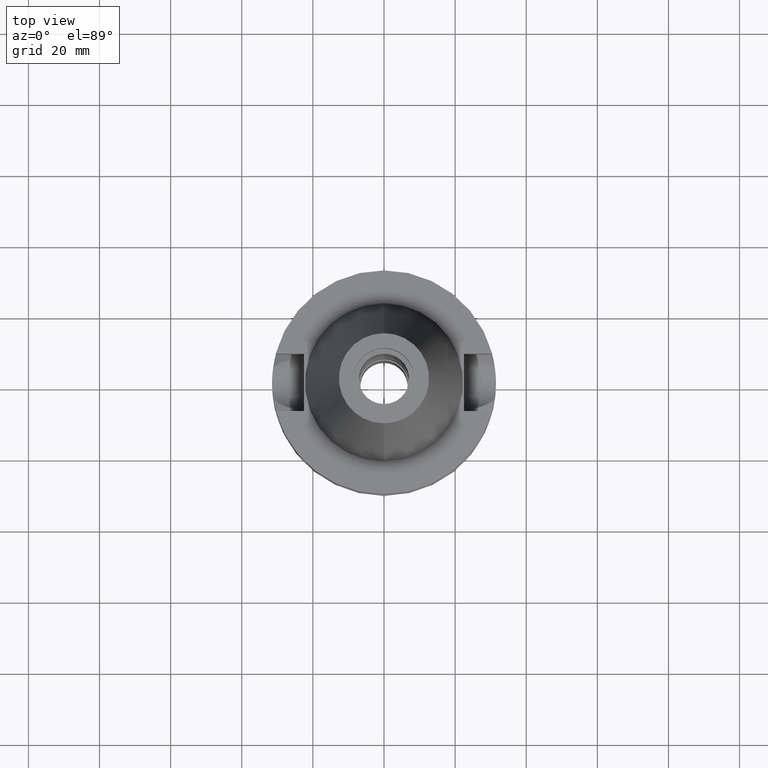
[diagram: clean part render]
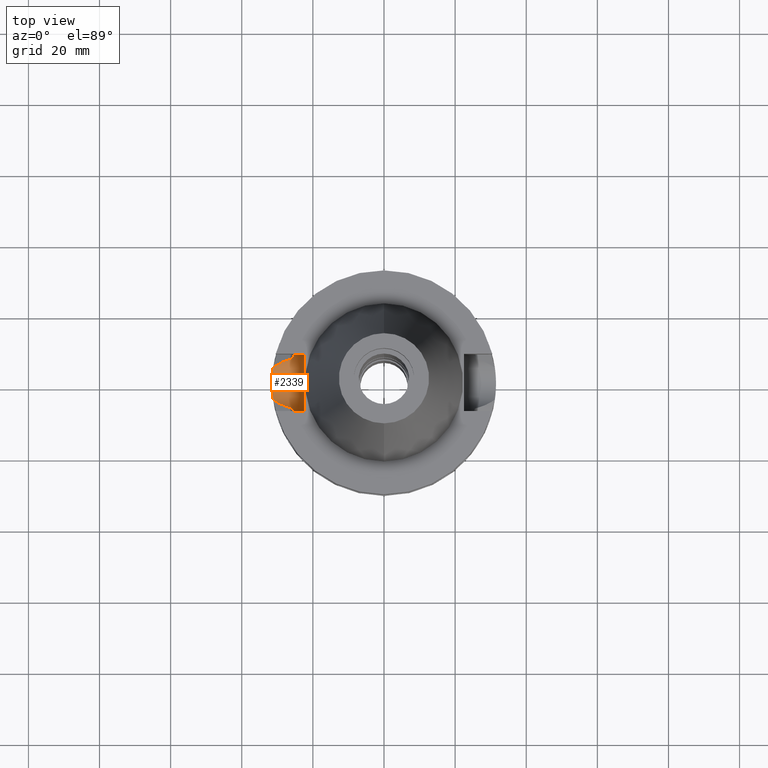
[diagram: same view with one face highlighted and labeled with its STEP entity id]
A machine part, top view. The second image highlights one B-rep face of the part: STEP entity #2339.
In plain terms, the highlighted cylindrical surface (edge-blend (fillet) strip) has radius 8.05 mm, axis along (-1, 0, 0).
Its self-contained STEP definition (entity closure, byte-faithful):
#88 = EDGE_CURVE ( 'NONE', #692, #2580, #1358, .T. ) ;
#94 = DIRECTION ( 'NONE',  ( -1.000000000000000000, 1.616208268639000174E-14, -1.034373291929000154E-14 ) ) ;
#101 = CARTESIAN_POINT ( 'NONE',  ( -27.55974685458694751, -6.434792144163425043, -19.78694888970511556 ) ) ;
#130 = CARTESIAN_POINT ( 'NONE',  ( -25.24772266957999634, -8.049999999999981171, -15.58980474792504367 ) ) ;
#170 = CARTESIAN_POINT ( 'NONE',  ( -25.31202500689251522, 7.845732311882787968, -16.75278555880698406 ) ) ;
#193 = VERTEX_POINT ( 'NONE', #2293 ) ;
#200 = CARTESIAN_POINT ( 'NONE',  ( -31.47056816806593460, -1.371798205043915253, -22.88470967409910273 ) ) ;
#212 = CARTESIAN_POINT ( 'NONE',  ( -28.35446103799016626, 6.108175788018489705, -20.19399472753387315 ) ) ;
#285 = CARTESIAN_POINT ( 'NONE',  ( -27.53353192113093684, -6.444830197928379079, -19.77355624461059946 ) ) ;
#317 = CARTESIAN_POINT ( 'NONE',  ( -27.64694085188696349, -6.401257936267352733, -19.83149640787958390 ) ) ;
#347 = CARTESIAN_POINT ( 'NONE',  ( -22.50000000000000000, -8.050000000000000711, -14.94999999999999929 ) ) ;
#352 = CARTESIAN_POINT ( 'NONE',  ( -26.58005036498687446, -6.789027938969186771, -19.28588337926796470 ) ) ;
#361 = CARTESIAN_POINT ( 'NONE',  ( -31.37907245650120558, 2.757363126057212455, -22.51361630134458025 ) ) ;
#364 = CARTESIAN_POINT ( 'NONE',  ( -25.35408242307545734, -7.708967323044883635, -17.26962711286457974 ) ) ;
#424 = CARTESIAN_POINT ( 'NONE',  ( -31.28458591552441703, -3.751599172498834900, -22.12699252593757393 ) ) ;
#435 = VERTEX_POINT ( 'NONE', #2950 ) ;
#442 = CARTESIAN_POINT ( 'NONE',  ( -31.40255557128091723, 2.476306052350162989, -22.60989025223804205 ) ) ;
#454 = CARTESIAN_POINT ( 'NONE',  ( -31.49983371806497345, -0.3969849275448745773, -22.99934650678997627 ) ) ;
#515 = VERTEX_POINT ( 'NONE', #347 ) ;
#566 = LINE ( 'NONE', #2489, #626 ) ;
#581 = CARTESIAN_POINT ( 'NONE',  ( -25.53175183775000079, -7.097862220092999941, -18.74774300138999905 ) ) ;
#588 = DIRECTION ( 'NONE',  ( 0.0000000000000000000, 0.0000000000000000000, -1.000000000000000000 ) ) ;
#599 = CARTESIAN_POINT ( 'NONE',  ( -31.40749760860638773, 2.412424580014052466, -22.63005222544029138 ) ) ;
#602 = CARTESIAN_POINT ( 'NONE',  ( -25.27267964220302687, -7.973335156090203490, -16.24499043090339256 ) ) ;
#626 = VECTOR ( 'NONE', #94, 1000.000000000000000 ) ;
#651 = EDGE_CURVE ( 'NONE', #515, #2580, #566, .T. ) ;
#667 = CARTESIAN_POINT ( 'NONE',  ( -25.53175183775000079, 7.097862220092999941, -18.74774300138999905 ) ) ;
#692 = VERTEX_POINT ( 'NONE', #581 ) ;
#704 = CARTESIAN_POINT ( 'NONE',  ( -31.17899877608999759, 4.485536235554000051, -21.63449434733000132 ) ) ;
#752 = CARTESIAN_POINT ( 'NONE',  ( -27.85020276548288720, 6.321945713316060811, -19.93634583844806230 ) ) ;
#792 = CARTESIAN_POINT ( 'NONE',  ( -27.52478353087719753, -6.448171886143756026, -19.76908705708537539 ) ) ;
#804 = CARTESIAN_POINT ( 'NONE',  ( -29.61009383760497471, -5.536685034069924072, -20.83504902301043771 ) ) ;
#810 = CARTESIAN_POINT ( 'NONE',  ( -25.28048322354058541, 7.947042364867001218, -16.24399973113296980 ) ) ;
#812 = CARTESIAN_POINT ( 'NONE',  ( -25.34384264177218782, -7.742472632730389215, -17.15618260506330017 ) ) ;
#829 = CARTESIAN_POINT ( 'NONE',  ( -31.41955969787372993, -2.249977568496600799, -22.67921356346549189 ) ) ;
#868 = ORIENTED_EDGE ( 'NONE', *, *, #88, .T. ) ;
#889 = CARTESIAN_POINT ( 'NONE',  ( -25.32118071774171497, 7.816100027253767735, -16.87651110713343527 ) ) ;
#926 = VERTEX_POINT ( 'NONE', #1984 ) ;
#930 = CARTESIAN_POINT ( 'NONE',  ( -29.74574054971717985, 5.454666337926899367, -20.90450104046752244 ) ) ;
#964 = AXIS2_PLACEMENT_3D ( 'NONE', #1030, #2994, #588 ) ;
#1016 = CARTESIAN_POINT ( 'NONE',  ( -22.50000000000000000, 8.050000000000000711, -14.94999999999999929 ) ) ;
#1030 = CARTESIAN_POINT ( 'NONE',  ( -22.50000000000000000, 1.807578675540999863E-14, -14.94999999999999929 ) ) ;
#1048 = CARTESIAN_POINT ( 'NONE',  ( -27.32378504441464528, -6.524203703106005392, -19.66638461227287493 ) ) ;
#1054 = CARTESIAN_POINT ( 'NONE',  ( -31.42474741543221839, -2.177058571080525695, -22.70031563427211196 ) ) ;
#1075 = EDGE_LOOP ( 'NONE', ( #868, #1966, #2210, #2354, #2388, #2549, #2098, #3140 ) ) ;
#1122 = CARTESIAN_POINT ( 'NONE',  ( -25.31648570732018655, 7.831303109281309460, -16.81376729955617577 ) ) ;
#1138 = CARTESIAN_POINT ( 'NONE',  ( -31.39044521733806192, 2.626578571192940803, -22.56039104643856064 ) ) ;
#1148 = CARTESIAN_POINT ( 'NONE',  ( -26.16788041425268929, 6.923001374914745654, -19.07455242116774485 ) ) ;
#1179 = CARTESIAN_POINT ( 'NONE',  ( -31.17899877608999759, 4.485536235554000051, -21.63449434733000132 ) ) ;
#1199 = CARTESIAN_POINT ( 'NONE',  ( -25.24772266958000344, -8.050000000000000711, -14.94999999999999929 ) ) ;
#1239 = B_SPLINE_CURVE_WITH_KNOTS ( 'NONE', 3,
 ( #1498, #2498, #804, #2971, #2481, #1485, #317, #101, #285, #792, #1979, #1760, #1048, #2533, #352, #1296, #2290 ),
 .UNSPECIFIED., .F., .F.,
 ( 4, 2, 2, 1, 2, 2, 1, 1, 2, 4 ),
 ( 0.0000000000000000000, 0.5000000000000085487, 0.6250000000000103251, 0.6562500000000109912, 0.6640625000000108802, 0.6679687500000101030, 0.6718750000000092149, 0.6875000000000086597, 0.7500000000000064393, 1.000000000000000000 ),
 .UNSPECIFIED. ) ;
#1296 = CARTESIAN_POINT ( 'NONE',  ( -26.07143628484737263, -6.949512213454606346, -19.02500449777575753 ) ) ;
#1309 = DIRECTION ( 'NONE',  ( 0.0000000000000000000, 0.0000000000000000000, -1.000000000000000000 ) ) ;
#1358 = B_SPLINE_CURVE_WITH_KNOTS ( 'NONE', 3,
 ( #1556, #1855, #2993, #2581, #3017, #364, #812, #2269, #1799, #2779, #2545, #602, #130, #2823 ),
 .UNSPECIFIED., .F., .F.,
 ( 4, 2, 2, 1, 1, 2, 2, 4 ),
 ( 0.0000000000000000000, 0.2500000000000078826, 0.3750000000000104916, 0.4375000000000118794, 0.4687500000000123790, 0.4843750000000127676, 0.5000000000000131006, 1.000000000000000000 ),
 .UNSPECIFIED. ) ;
#1362 = CYLINDRICAL_SURFACE ( 'NONE', #2306, 8.050000000000000711 ) ;
#1375 = CARTESIAN_POINT ( 'NONE',  ( -25.53175183775000079, 7.097862220092999941, -18.74774300138999905 ) ) ;
#1407 = CARTESIAN_POINT ( 'NONE',  ( -28.59717086681555287, 5.999532449420087232, -20.31795142937170340 ) ) ;
#1409 = CARTESIAN_POINT ( 'NONE',  ( -31.41604485789485679, -2.298564670178245173, -22.66490387661474770 ) ) ;
#1423 = VECTOR ( 'NONE', #1463, 1000.000000000000000 ) ;
#1427 = B_SPLINE_CURVE_WITH_KNOTS ( 'NONE', 3,
 ( #2776, #2031, #2991, #1553, #810, #1781, #2301, #170, #1122, #3087, #889, #2833, #2361, #667 ),
 .UNSPECIFIED., .F., .F.,
 ( 4, 2, 2, 1, 1, 2, 2, 4 ),
 ( 0.0000000000000000000, 0.2500000000000326406, 0.3750000000000489608, 0.4375000000000558997, 0.4687500000000580647, 0.4843750000000578426, 0.5000000000000576206, 1.000000000000000000 ),
 .UNSPECIFIED. ) ;
#1445 = CARTESIAN_POINT ( 'NONE',  ( -28.71756531028989556, 5.943918117813177915, -20.37942872463622734 ) ) ;
#1463 = DIRECTION ( 'NONE',  ( 1.000000000000000000, 1.551559937893000172E-14, -3.620306521749999889E-14 ) ) ;
#1485 = CARTESIAN_POINT ( 'NONE',  ( -27.73318927808697509, -6.367356601348545198, -19.87556997781701540 ) ) ;
#1498 = CARTESIAN_POINT ( 'NONE',  ( -31.17899877608999759, -4.485536235554000051, -21.63449434733000132 ) ) ;
#1541 = EDGE_CURVE ( 'NONE', #2952, #435, #2561, .T. ) ;
#1553 = CARTESIAN_POINT ( 'NONE',  ( -25.27268309164520232, 7.971812745166494629, -16.08115051879740420 ) ) ;
#1556 = CARTESIAN_POINT ( 'NONE',  ( -25.53175183775000079, -7.097862220092999941, -18.74774300138999905 ) ) ;
#1642 = CARTESIAN_POINT ( 'NONE',  ( -31.23226293288991329, 4.115296649378207050, -21.88293843200697353 ) ) ;
#1657 = CARTESIAN_POINT ( 'NONE',  ( -31.47164681449472212, 1.548077469549880458, -22.89150997833665002 ) ) ;
#1713 = VERTEX_POINT ( 'NONE', #1016 ) ;
#1731 = EDGE_CURVE ( 'NONE', #193, #692, #1239, .T. ) ;
#1760 = CARTESIAN_POINT ( 'NONE',  ( -27.47474440796348816, -6.467230993286319674, -19.74352264367541210 ) ) ;
#1781 = CARTESIAN_POINT ( 'NONE',  ( -25.29452346095227000, 7.902092865024707535, -16.48827265652634111 ) ) ;
#1799 = CARTESIAN_POINT ( 'NONE',  ( -25.32840508997089302, -7.792668837077992627, -16.96920308231150187 ) ) ;
#1818 = DIRECTION ( 'NONE',  ( -1.000000000000000000, 0.0000000000000000000, 0.0000000000000000000 ) ) ;
#1855 = CARTESIAN_POINT ( 'NONE',  ( -25.48480632951354252, -7.266730117095977270, -18.43213421324911039 ) ) ;
#1900 = CARTESIAN_POINT ( 'NONE',  ( -31.33719342388254603, 3.200318897617706160, -22.33920407941082331 ) ) ;
#1932 = CARTESIAN_POINT ( 'NONE',  ( -26.76094929965482905, 6.731140030953087106, -19.37886210997125858 ) ) ;
#1944 = LINE ( 'NONE', #3142, #1423 ) ;
#1966 = ORIENTED_EDGE ( 'NONE', *, *, #651, .F. ) ;
#1972 = EDGE_CURVE ( 'NONE', #926, #1713, #1944, .T. ) ;
#1979 = CARTESIAN_POINT ( 'NONE',  ( -27.51049747510015564, -6.453619961431074969, -19.76178866227943587 ) ) ;
#1984 = CARTESIAN_POINT ( 'NONE',  ( -25.24772266958000344, 8.050000000000000711, -14.94999999999999929 ) ) ;
#2031 = CARTESIAN_POINT ( 'NONE',  ( -25.24772266957999989, 8.050000000000016698, -15.26991016303403903 ) ) ;
#2046 = CARTESIAN_POINT ( 'NONE',  ( -31.46146862952803858, -1.567358629213981169, -22.84847756273185126 ) ) ;
#2098 = ORIENTED_EDGE ( 'NONE', *, *, #2877, .T. ) ;
#2100 = FACE_OUTER_BOUND ( 'NONE', #1075, .T. ) ;
#2123 = CARTESIAN_POINT ( 'NONE',  ( -25.53175183775000079, 7.097862220092999941, -18.74774300138999905 ) ) ;
#2137 = CARTESIAN_POINT ( 'NONE',  ( -31.44511396460613639, -1.860301245820806137, -22.78273863314645098 ) ) ;
#2157 = B_SPLINE_CURVE_WITH_KNOTS ( 'NONE', 3,
 ( #704, #1642, #2624, #1900, #3013, #361, #1138, #442, #599, #2866, #2377, #1657, #2636, #454, #2282, #200, #2046, #2137, #2525, #1054, #829, #1409, #2605, #3112, #424, #2394 ),
 .UNSPECIFIED., .F., .F.,
 ( 4, 2, 2, 1, 1, 2, 2, 2, 2, 2, 1, 1, 2, 2, 4 ),
 ( 0.0000000000000000000, 0.1250000000000018596, 0.1875000000000026645, 0.2187500000000028033, 0.2343750000000028866, 0.2421875000000031086, 0.2500000000000033307, 0.5000000000000043299, 0.6250000000000048850, 0.6875000000000049960, 0.7187500000000048850, 0.7343750000000048850, 0.7421875000000049960, 0.7500000000000051070, 1.000000000000000000 ),
 .UNSPECIFIED. ) ;
#2210 = ORIENTED_EDGE ( 'NONE', *, *, #2223, .T. ) ;
#2223 = EDGE_CURVE ( 'NONE', #515, #1713, #2458, .T. ) ;
#2269 = CARTESIAN_POINT ( 'NONE',  ( -25.33288764352089828, -7.778115188377665135, -17.02509724668475144 ) ) ;
#2282 = CARTESIAN_POINT ( 'NONE',  ( -31.49245606944948861, -0.7860991982232226061, -22.97124303091279884 ) ) ;
#2290 = CARTESIAN_POINT ( 'NONE',  ( -25.53175183775000079, -7.097862220092999941, -18.74774300138999905 ) ) ;
#2293 = CARTESIAN_POINT ( 'NONE',  ( -31.17899877608999759, -4.485536235554000051, -21.63449434733000132 ) ) ;
#2301 = CARTESIAN_POINT ( 'NONE',  ( -25.30212858955025723, 7.877670097774115199, -16.61040846292341655 ) ) ;
#2306 = AXIS2_PLACEMENT_3D ( 'NONE', #2824, #1818, #1309 ) ;
#2339 = ADVANCED_FACE ( 'NONE', ( #2100 ), #1362, .F. ) ;
#2354 = ORIENTED_EDGE ( 'NONE', *, *, #1972, .F. ) ;
#2361 = CARTESIAN_POINT ( 'NONE',  ( -25.43786288018555197, 7.435590607957213827, -18.11653926695827721 ) ) ;
#2377 = CARTESIAN_POINT ( 'NONE',  ( -31.41215830074744986, 2.351096289901849268, -22.64905788738930070 ) ) ;
#2388 = ORIENTED_EDGE ( 'NONE', *, *, #2925, .T. ) ;
#2394 = CARTESIAN_POINT ( 'NONE',  ( -31.17899877608999759, -4.485536235554000051, -21.63449434733000132 ) ) ;
#2438 = CARTESIAN_POINT ( 'NONE',  ( -30.52813780722729931, 4.979324045426811729, -21.30314495891719417 ) ) ;
#2458 = CIRCLE ( 'NONE', #964, 8.050000000000000711 ) ;
#2481 = CARTESIAN_POINT ( 'NONE',  ( -28.07515715536694145, -6.230614844216087356, -20.05033859511151206 ) ) ;
#2489 = CARTESIAN_POINT ( 'NONE',  ( -22.50000000000000000, -8.050000000000000711, -14.94999999999999929 ) ) ;
#2498 = CARTESIAN_POINT ( 'NONE',  ( -30.47200749136084852, -5.021908356156401965, -21.27456935410423355 ) ) ;
#2525 = CARTESIAN_POINT ( 'NONE',  ( -31.43626029286637191, -2.006672135017112613, -22.74702249194408665 ) ) ;
#2533 = CARTESIAN_POINT ( 'NONE',  ( -27.17698000646395684, -6.577705883953662180, -19.59131480497401157 ) ) ;
#2545 = CARTESIAN_POINT ( 'NONE',  ( -25.32415339823800693, -7.806463147615998466, -16.91521530250347283 ) ) ;
#2549 = ORIENTED_EDGE ( 'NONE', *, *, #1541, .T. ) ;
#2561 = B_SPLINE_CURVE_WITH_KNOTS ( 'NONE', 3,
 ( #1375, #1148, #1932, #2880, #752, #3129, #212, #1407, #1445, #930, #2438, #1179 ),
 .UNSPECIFIED., .F., .F.,
 ( 4, 2, 2, 2, 2, 4 ),
 ( 0.0000000000000000000, 0.2500000000000018319, 0.3750000000000028311, 0.4375000000000029421, 0.5000000000000029976, 1.000000000000000000 ),
 .UNSPECIFIED. ) ;
#2580 = VERTEX_POINT ( 'NONE', #1199 ) ;
#2581 = CARTESIAN_POINT ( 'NONE',  ( -25.39161415862833593, -7.584927955220003959, -17.65164487412626215 ) ) ;
#2605 = CARTESIAN_POINT ( 'NONE',  ( -31.41408065394642790, -2.325228041227105802, -22.65689912745538237 ) ) ;
#2624 = CARTESIAN_POINT ( 'NONE',  ( -31.27846961443802343, 3.743983546129688200, -22.08754853579519661 ) ) ;
#2636 = CARTESIAN_POINT ( 'NONE',  ( -31.50032380699094148, 0.7535289836126551899, -23.00127312585623685 ) ) ;
#2776 = CARTESIAN_POINT ( 'NONE',  ( -25.24772266958000344, 8.050000000000000711, -14.94999999999999929 ) ) ;
#2779 = CARTESIAN_POINT ( 'NONE',  ( -25.32546393109321414, -7.802212764485837226, -16.93200521434151185 ) ) ;
#2823 = CARTESIAN_POINT ( 'NONE',  ( -25.24772266958000344, -8.050000000000000711, -14.94999999999999929 ) ) ;
#2824 = CARTESIAN_POINT ( 'NONE',  ( -22.50000000000000000, 1.807578675540999863E-14, -14.94999999999999929 ) ) ;
#2833 = CARTESIAN_POINT ( 'NONE',  ( -25.36814691286075529, 7.663833599064830970, -17.48802854141449359 ) ) ;
#2866 = CARTESIAN_POINT ( 'NONE',  ( -31.41073716363128909, 2.369955556986304224, -22.64326362460406372 ) ) ;
#2877 = EDGE_CURVE ( 'NONE', #435, #193, #2157, .T. ) ;
#2880 = CARTESIAN_POINT ( 'NONE',  ( -27.58596309110722089, 6.426372668903113983, -19.80122414929826746 ) ) ;
#2925 = EDGE_CURVE ( 'NONE', #926, #2952, #1427, .T. ) ;
#2950 = CARTESIAN_POINT ( 'NONE',  ( -31.17899877608999759, 4.485536235554000051, -21.63449434733000132 ) ) ;
#2952 = VERTEX_POINT ( 'NONE', #2123 ) ;
#2971 = CARTESIAN_POINT ( 'NONE',  ( -28.33904880912676205, -6.117585818655927099, -20.18526792050682062 ) ) ;
#2991 = CARTESIAN_POINT ( 'NONE',  ( -25.25396277509630139, 8.030907860997638537, -15.59359823559724312 ) ) ;
#2993 = CARTESIAN_POINT ( 'NONE',  ( -25.44390372120356858, -7.408325733685588332, -18.11690357773887072 ) ) ;
#2994 = DIRECTION ( 'NONE',  ( 1.000000000000000000, 0.0000000000000000000, 0.0000000000000000000 ) ) ;
#3013 = CARTESIAN_POINT ( 'NONE',  ( -31.35500365821777891, 3.021264144779512772, -22.41390211746455208 ) ) ;
#3017 = CARTESIAN_POINT ( 'NONE',  ( -25.37569502941821042, -7.637838761646827734, -17.49780446132101730 ) ) ;
#3087 = CARTESIAN_POINT ( 'NONE',  ( -25.31950825842965358, 7.821518470898141118, -16.85441217852998008 ) ) ;
#3112 = CARTESIAN_POINT ( 'NONE',  ( -31.36242476481870156, -3.016548684996132934, -22.44626900664898272 ) ) ;
#3129 = CARTESIAN_POINT ( 'NONE',  ( -28.23041489288367956, 6.162028363774126660, -20.13063143349575412 ) ) ;
#3140 = ORIENTED_EDGE ( 'NONE', *, *, #1731, .T. ) ;
#3142 = CARTESIAN_POINT ( 'NONE',  ( -25.24772266958000344, 8.050000000000000711, -14.94999999999999929 ) ) ;